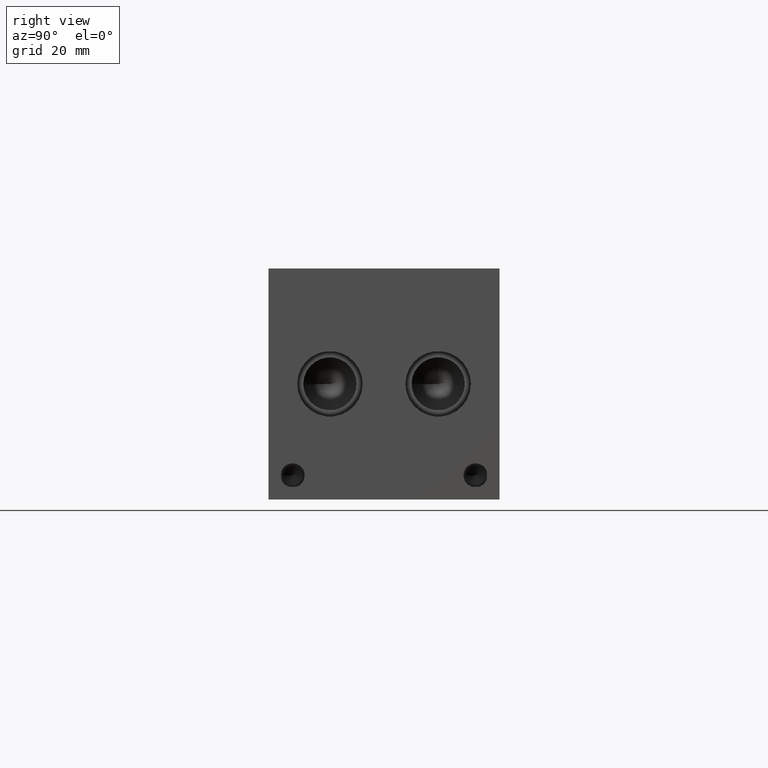
[diagram: clean part render]
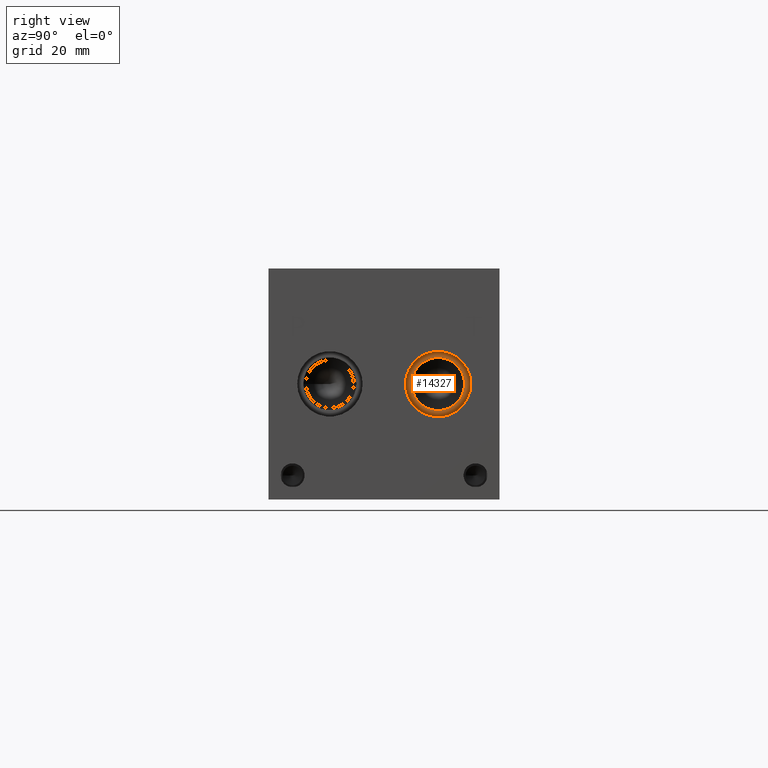
[diagram: same view with one face highlighted and labeled with its STEP entity id]
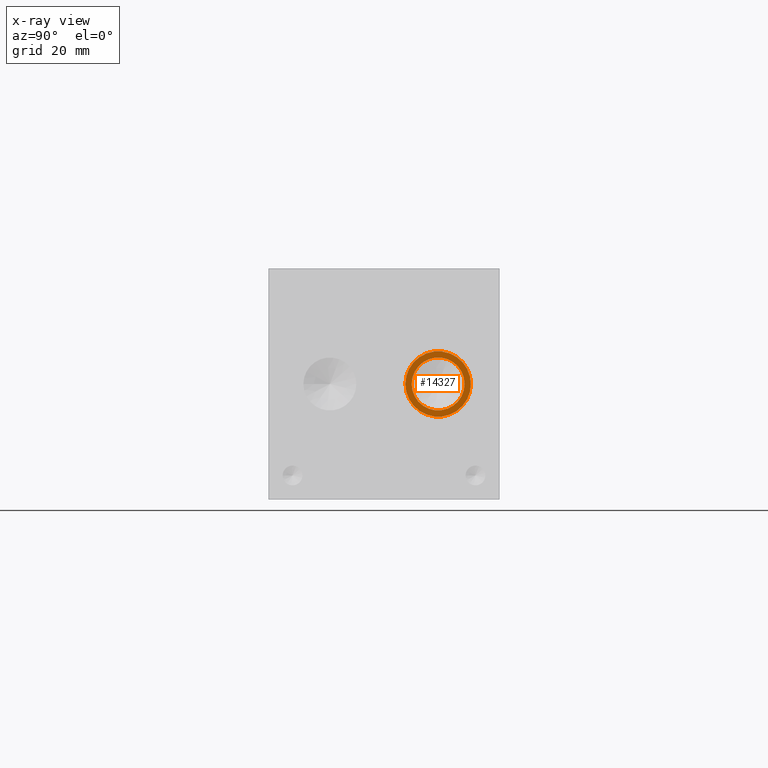
[diagram: x-ray of the same camera — body ghosted, the highlighted face saturated]
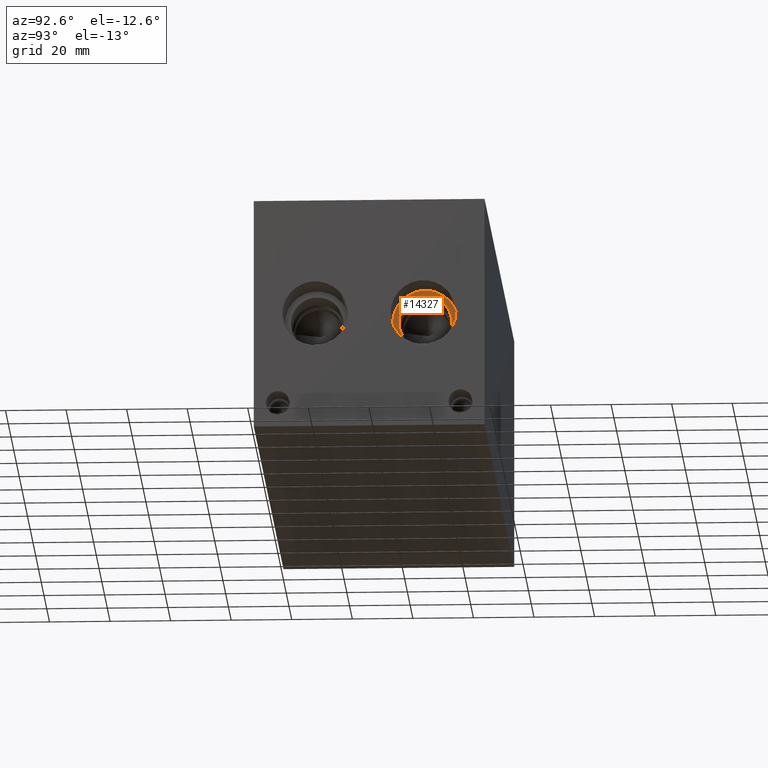
[diagram: same view with one face highlighted and labeled with its STEP entity id]
A machine part, right view. The second image highlights one B-rep face of the part: STEP entity #14327.
The next image is the same camera in x-ray: the body ghosted, the highlighted face saturated — about 0% of this face is hidden behind the body in this view.
A second angle (auxiliary view) of the same face is appended — the face is thin or edge-on in the first view.
In plain terms, the highlighted planar face has unit normal (1, 0, 0).
Its self-contained STEP definition (entity closure, byte-faithful):
#450=CIRCLE('',#15198,10.795);
#451=CIRCLE('',#15199,10.795);
#452=CIRCLE('',#15200,8.7376);
#584=FACE_BOUND('',#2592,.T.);
#1034=PLANE('',#15197);
#1752=FACE_OUTER_BOUND('',#2591,.T.);
#2591=EDGE_LOOP('',(#12689,#12690));
#2592=EDGE_LOOP('',(#12691));
#6962=VERTEX_POINT('',#24552);
#6963=VERTEX_POINT('',#24553);
#6964=VERTEX_POINT('',#24556);
#8916=EDGE_CURVE('',#6962,#6963,#450,.T.);
#8917=EDGE_CURVE('',#6963,#6962,#451,.T.);
#8918=EDGE_CURVE('',#6964,#6964,#452,.T.);
#12689=ORIENTED_EDGE('',*,*,#8916,.T.);
#12690=ORIENTED_EDGE('',*,*,#8917,.T.);
#12691=ORIENTED_EDGE('',*,*,#8918,.F.);
#14327=ADVANCED_FACE('',(#1752,#584),#1034,.T.);
#15197=AXIS2_PLACEMENT_3D('',#24551,#18195,#18196);
#15198=AXIS2_PLACEMENT_3D('',#24554,#18197,#18198);
#15199=AXIS2_PLACEMENT_3D('',#24555,#18199,#18200);
#15200=AXIS2_PLACEMENT_3D('',#24557,#18201,#18202);
#18195=DIRECTION('center_axis',(1.,0.,0.));
#18196=DIRECTION('ref_axis',(0.,1.,0.));
#18197=DIRECTION('center_axis',(1.,0.,0.));
#18198=DIRECTION('ref_axis',(0.,1.,0.));
#18199=DIRECTION('center_axis',(1.,0.,0.));
#18200=DIRECTION('ref_axis',(0.,1.,0.));
#18201=DIRECTION('center_axis',(1.,0.,0.));
#18202=DIRECTION('ref_axis',(0.,1.,0.));
#24551=CARTESIAN_POINT('Origin',(200.533,55.9562,38.1));
#24552=CARTESIAN_POINT('',(200.533,66.7512,38.1));
#24553=CARTESIAN_POINT('',(200.533,45.1612,38.1));
#24554=CARTESIAN_POINT('Origin',(200.533,55.9562,38.1));
#24555=CARTESIAN_POINT('Origin',(200.533,55.9562,38.1));
#24556=CARTESIAN_POINT('',(200.533,47.2186,38.1));
#24557=CARTESIAN_POINT('Origin',(200.533,55.9562,38.1));